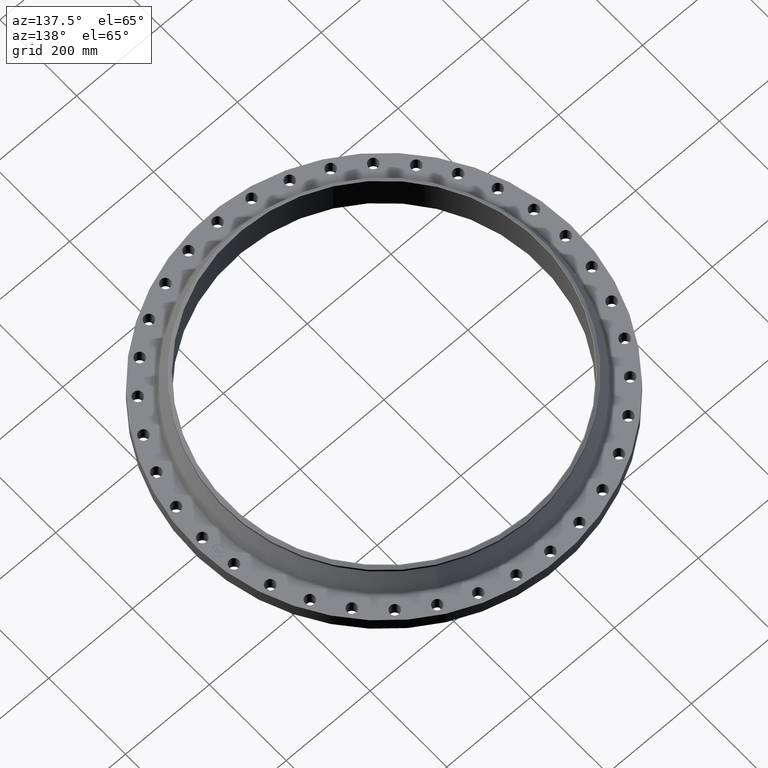
[diagram: clean part render]
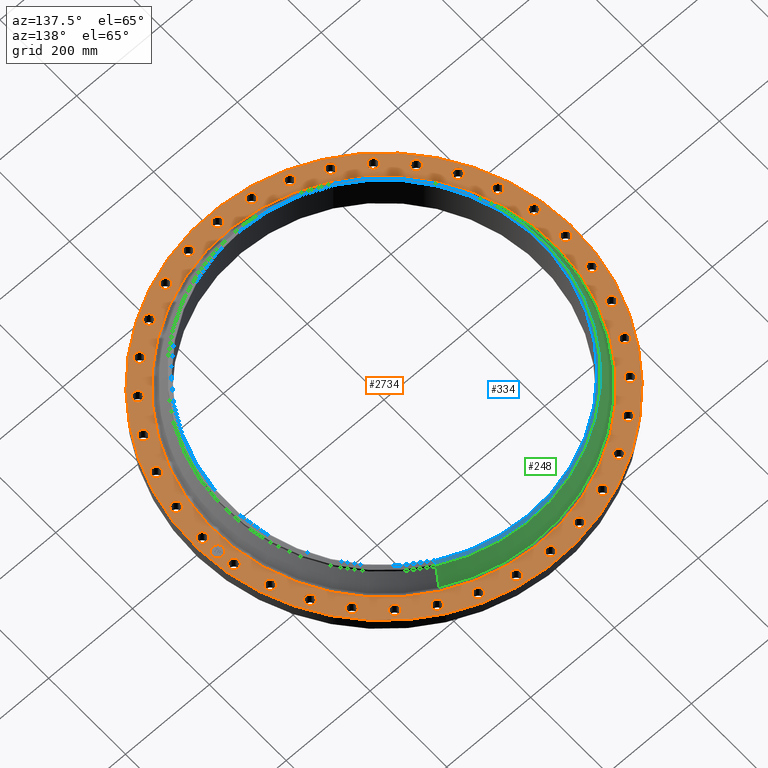
[diagram: same view with three faces highlighted in distinct colors, each labeled with its STEP entity id]
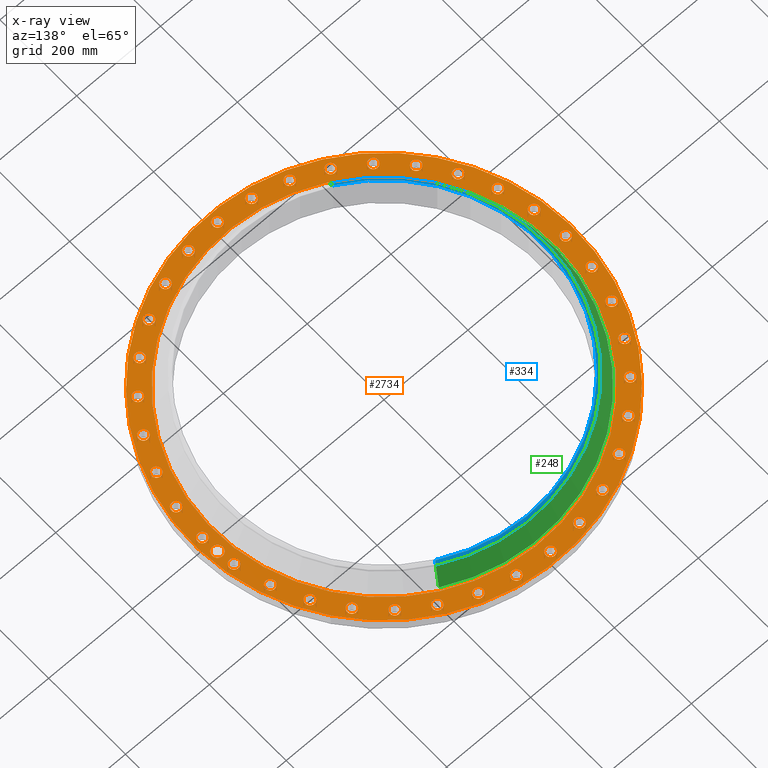
[diagram: x-ray of the same camera — body ghosted, the three highlighted faces saturated]
A machine part, auxiliary view with three faces highlighted in distinct colors.
The next image is the same camera in x-ray (body ghosted, the three faces saturated) — at least one of them is partly hidden behind the body in this view.
Their STEP definitions:

[orange] entity #2734 — the highlighted planar face has unit normal (0, 0, -1).
#65=AXIS2_PLACEMENT_3D('Circle Axis2P3D',#63,#64,$) ;
#82=AXIS2_PLACEMENT_3D('Circle Axis2P3D',#80,#81,$) ;
#115=AXIS2_PLACEMENT_3D('Circle Axis2P3D',#113,#114,$) ;
#139=AXIS2_PLACEMENT_3D('Circle Axis2P3D',#137,#138,$) ;
#156=AXIS2_PLACEMENT_3D('Circle Axis2P3D',#154,#155,$) ;
#191=AXIS2_PLACEMENT_3D('Circle Axis2P3D',#189,#190,$) ;
#1075=AXIS2_PLACEMENT_3D('Circle Axis2P3D',#1073,#1074,$) ;
#1087=AXIS2_PLACEMENT_3D('Circle Axis2P3D',#1085,#1086,$) ;
#1118=AXIS2_PLACEMENT_3D('Circle Axis2P3D',#1116,#1117,$) ;
#1130=AXIS2_PLACEMENT_3D('Circle Axis2P3D',#1128,#1129,$) ;
#1161=AXIS2_PLACEMENT_3D('Circle Axis2P3D',#1159,#1160,$) ;
#1173=AXIS2_PLACEMENT_3D('Circle Axis2P3D',#1171,#1172,$) ;
#1204=AXIS2_PLACEMENT_3D('Circle Axis2P3D',#1202,#1203,$) ;
#1216=AXIS2_PLACEMENT_3D('Circle Axis2P3D',#1214,#1215,$) ;
#1247=AXIS2_PLACEMENT_3D('Circle Axis2P3D',#1245,#1246,$) ;
#1259=AXIS2_PLACEMENT_3D('Circle Axis2P3D',#1257,#1258,$) ;
#1290=AXIS2_PLACEMENT_3D('Circle Axis2P3D',#1288,#1289,$) ;
#1302=AXIS2_PLACEMENT_3D('Circle Axis2P3D',#1300,#1301,$) ;
#1333=AXIS2_PLACEMENT_3D('Circle Axis2P3D',#1331,#1332,$) ;
#1345=AXIS2_PLACEMENT_3D('Circle Axis2P3D',#1343,#1344,$) ;
#1376=AXIS2_PLACEMENT_3D('Circle Axis2P3D',#1374,#1375,$) ;
#1388=AXIS2_PLACEMENT_3D('Circle Axis2P3D',#1386,#1387,$) ;
#1419=AXIS2_PLACEMENT_3D('Circle Axis2P3D',#1417,#1418,$) ;
#1431=AXIS2_PLACEMENT_3D('Circle Axis2P3D',#1429,#1430,$) ;
#1462=AXIS2_PLACEMENT_3D('Circle Axis2P3D',#1460,#1461,$) ;
#1474=AXIS2_PLACEMENT_3D('Circle Axis2P3D',#1472,#1473,$) ;
#1505=AXIS2_PLACEMENT_3D('Circle Axis2P3D',#1503,#1504,$) ;
#1517=AXIS2_PLACEMENT_3D('Circle Axis2P3D',#1515,#1516,$) ;
#1548=AXIS2_PLACEMENT_3D('Circle Axis2P3D',#1546,#1547,$) ;
#1560=AXIS2_PLACEMENT_3D('Circle Axis2P3D',#1558,#1559,$) ;
#1591=AXIS2_PLACEMENT_3D('Circle Axis2P3D',#1589,#1590,$) ;
#1603=AXIS2_PLACEMENT_3D('Circle Axis2P3D',#1601,#1602,$) ;
#1634=AXIS2_PLACEMENT_3D('Circle Axis2P3D',#1632,#1633,$) ;
#1646=AXIS2_PLACEMENT_3D('Circle Axis2P3D',#1644,#1645,$) ;
#1677=AXIS2_PLACEMENT_3D('Circle Axis2P3D',#1675,#1676,$) ;
#1689=AXIS2_PLACEMENT_3D('Circle Axis2P3D',#1687,#1688,$) ;
#1720=AXIS2_PLACEMENT_3D('Circle Axis2P3D',#1718,#1719,$) ;
#1732=AXIS2_PLACEMENT_3D('Circle Axis2P3D',#1730,#1731,$) ;
#1763=AXIS2_PLACEMENT_3D('Circle Axis2P3D',#1761,#1762,$) ;
#1775=AXIS2_PLACEMENT_3D('Circle Axis2P3D',#1773,#1774,$) ;
#1806=AXIS2_PLACEMENT_3D('Circle Axis2P3D',#1804,#1805,$) ;
#1818=AXIS2_PLACEMENT_3D('Circle Axis2P3D',#1816,#1817,$) ;
#1849=AXIS2_PLACEMENT_3D('Circle Axis2P3D',#1847,#1848,$) ;
#1861=AXIS2_PLACEMENT_3D('Circle Axis2P3D',#1859,#1860,$) ;
#1892=AXIS2_PLACEMENT_3D('Circle Axis2P3D',#1890,#1891,$) ;
#1904=AXIS2_PLACEMENT_3D('Circle Axis2P3D',#1902,#1903,$) ;
#1935=AXIS2_PLACEMENT_3D('Circle Axis2P3D',#1933,#1934,$) ;
#1947=AXIS2_PLACEMENT_3D('Circle Axis2P3D',#1945,#1946,$) ;
#1978=AXIS2_PLACEMENT_3D('Circle Axis2P3D',#1976,#1977,$) ;
#1990=AXIS2_PLACEMENT_3D('Circle Axis2P3D',#1988,#1989,$) ;
#2021=AXIS2_PLACEMENT_3D('Circle Axis2P3D',#2019,#2020,$) ;
#2033=AXIS2_PLACEMENT_3D('Circle Axis2P3D',#2031,#2032,$) ;
#2064=AXIS2_PLACEMENT_3D('Circle Axis2P3D',#2062,#2063,$) ;
#2076=AXIS2_PLACEMENT_3D('Circle Axis2P3D',#2074,#2075,$) ;
#2107=AXIS2_PLACEMENT_3D('Circle Axis2P3D',#2105,#2106,$) ;
#2119=AXIS2_PLACEMENT_3D('Circle Axis2P3D',#2117,#2118,$) ;
#2150=AXIS2_PLACEMENT_3D('Circle Axis2P3D',#2148,#2149,$) ;
#2162=AXIS2_PLACEMENT_3D('Circle Axis2P3D',#2160,#2161,$) ;
#2193=AXIS2_PLACEMENT_3D('Circle Axis2P3D',#2191,#2192,$) ;
#2205=AXIS2_PLACEMENT_3D('Circle Axis2P3D',#2203,#2204,$) ;
#2236=AXIS2_PLACEMENT_3D('Circle Axis2P3D',#2234,#2235,$) ;
#2248=AXIS2_PLACEMENT_3D('Circle Axis2P3D',#2246,#2247,$) ;
#2279=AXIS2_PLACEMENT_3D('Circle Axis2P3D',#2277,#2278,$) ;
#2291=AXIS2_PLACEMENT_3D('Circle Axis2P3D',#2289,#2290,$) ;
#2322=AXIS2_PLACEMENT_3D('Circle Axis2P3D',#2320,#2321,$) ;
#2334=AXIS2_PLACEMENT_3D('Circle Axis2P3D',#2332,#2333,$) ;
#2365=AXIS2_PLACEMENT_3D('Circle Axis2P3D',#2363,#2364,$) ;
#2377=AXIS2_PLACEMENT_3D('Circle Axis2P3D',#2375,#2376,$) ;
#2408=AXIS2_PLACEMENT_3D('Circle Axis2P3D',#2406,#2407,$) ;
#2420=AXIS2_PLACEMENT_3D('Circle Axis2P3D',#2418,#2419,$) ;
#2451=AXIS2_PLACEMENT_3D('Circle Axis2P3D',#2449,#2450,$) ;
#2463=AXIS2_PLACEMENT_3D('Circle Axis2P3D',#2461,#2462,$) ;
#2494=AXIS2_PLACEMENT_3D('Circle Axis2P3D',#2492,#2493,$) ;
#2506=AXIS2_PLACEMENT_3D('Circle Axis2P3D',#2504,#2505,$) ;
#2537=AXIS2_PLACEMENT_3D('Circle Axis2P3D',#2535,#2536,$) ;
#2549=AXIS2_PLACEMENT_3D('Circle Axis2P3D',#2547,#2548,$) ;
#2562=AXIS2_PLACEMENT_3D('Plane Axis2P3D',#2559,#2560,#2561) ;
#2718=AXIS2_PLACEMENT_3D('Circle Axis2P3D',#2716,#2717,$) ;
#2727=AXIS2_PLACEMENT_3D('Circle Axis2P3D',#2725,#2726,$) ;
#46=CARTESIAN_POINT('Vertex',(16.6788636728,0.210947236987,1.38000000001)) ;
#60=CARTESIAN_POINT('Vertex',(17.4511363273,-0.210947236987,1.38000000001)) ;
#63=CARTESIAN_POINT('Axis2P3D Location',(17.0650000001,0.,1.38000000001)) ;
#80=CARTESIAN_POINT('Axis2P3D Location',(17.0650000001,0.,1.38000000001)) ;
#110=CARTESIAN_POINT('Vertex',(-8.56973150258,-15.6867882939,1.38000000001)) ;
#113=CARTESIAN_POINT('Axis2P3D Location',(0.,0.,1.38000000001)) ;
#117=CARTESIAN_POINT('Vertex',(8.56973150258,15.6867882939,1.38000000001)) ;
#137=CARTESIAN_POINT('Axis2P3D Location',(0.,0.,1.38000000001)) ;
#154=CARTESIAN_POINT('Axis2P3D Location',(0.,0.,1.38000000001)) ;
#158=CARTESIAN_POINT('Vertex',(7.71508073723,14.1223605615,1.38000000001)) ;
#160=CARTESIAN_POINT('Vertex',(-7.71508073723,-14.1223605615,1.38000000001)) ;
#189=CARTESIAN_POINT('Axis2P3D Location',(0.,0.,1.38000000001)) ;
#1063=CARTESIAN_POINT('Vertex',(-16.4621048597,2.68851180788,1.38000000001)) ;
#1070=CARTESIAN_POINT('Vertex',(-17.1493837507,3.23810049591,1.38000000001)) ;
#1073=CARTESIAN_POINT('Axis2P3D Location',(-16.8057443052,2.9633061519,1.38000000001)) ;
#1085=CARTESIAN_POINT('Axis2P3D Location',(-16.8057443052,2.9633061519,1.38000000001)) ;
#1106=CARTESIAN_POINT('Vertex',(15.7451533207,-5.50628178192,1.38000000001)) ;
#1113=CARTESIAN_POINT('Vertex',(16.3265558269,-6.16686570983,1.38000000001)) ;
#1116=CARTESIAN_POINT('Axis2P3D Location',(16.0358545738,-5.83657374588,1.38000000001)) ;
#1128=CARTESIAN_POINT('Axis2P3D Location',(16.0358545738,-5.83657374588,1.38000000001)) ;
#1149=CARTESIAN_POINT('Vertex',(-15.7451533207,5.50628178192,1.38000000001)) ;
#1156=CARTESIAN_POINT('Vertex',(-16.3265558269,6.16686570983,1.38000000001)) ;
#1159=CARTESIAN_POINT('Axis2P3D Location',(-16.0358545738,5.83657374588,1.38000000001)) ;
#1171=CARTESIAN_POINT('Axis2P3D Location',(-16.0358545738,5.83657374588,1.38000000001)) ;
#1192=CARTESIAN_POINT('Vertex',(14.5497932654,-8.15674617033,1.38000000001)) ;
#1199=CARTESIAN_POINT('Vertex',(15.0076537659,-8.90825382974,1.38000000001)) ;
#1202=CARTESIAN_POINT('Axis2P3D Location',(14.7787235156,-8.53250000003,1.38000000001)) ;
#1214=CARTESIAN_POINT('Axis2P3D Location',(14.7787235156,-8.53250000003,1.38000000001)) ;
#1235=CARTESIAN_POINT('Vertex',(-14.5497932654,8.15674617033,1.38000000001)) ;
#1242=CARTESIAN_POINT('Vertex',(-15.0076537659,8.90825382974,1.38000000001)) ;
#1245=CARTESIAN_POINT('Axis2P3D Location',(-14.7787235156,8.53250000003,1.38000000001)) ;
#1257=CARTESIAN_POINT('Axis2P3D Location',(-14.7787235156,8.53250000003,1.38000000001)) ;
#1278=CARTESIAN_POINT('Vertex',(12.9123451043,-10.5593719539,1.38000000001)) ;
#1285=CARTESIAN_POINT('Vertex',(13.2327517394,-11.3789691648,1.38000000001)) ;
#1288=CARTESIAN_POINT('Axis2P3D Location',(13.0725484219,-10.9691705593,1.38000000001)) ;
#1300=CARTESIAN_POINT('Axis2P3D Location',(13.0725484219,-10.9691705593,1.38000000001)) ;
#1321=CARTESIAN_POINT('Vertex',(-12.9123451043,10.5593719539,1.38000000001)) ;
#1328=CARTESIAN_POINT('Vertex',(-13.2327517394,11.3789691648,1.38000000001)) ;
#1331=CARTESIAN_POINT('Axis2P3D Location',(-13.0725484219,10.9691705593,1.38000000001)) ;
#1343=CARTESIAN_POINT('Axis2P3D Location',(-13.0725484219,10.9691705593,1.38000000001)) ;
#1364=CARTESIAN_POINT('Vertex',(10.8825618712,-12.6411565639,1.38000000001)) ;
#1371=CARTESIAN_POINT('Vertex',(11.0557792475,-13.5039402799,1.38000000001)) ;
#1374=CARTESIAN_POINT('Axis2P3D Location',(10.9691705593,-13.0725484219,1.38000000001)) ;
#1386=CARTESIAN_POINT('Axis2P3D Location',(10.9691705593,-13.0725484219,1.38000000001)) ;
#1407=CARTESIAN_POINT('Vertex',(-10.8825618712,12.6411565639,1.38000000001)) ;
#1414=CARTESIAN_POINT('Vertex',(-11.0557792475,13.5039402799,1.38000000001)) ;
#1417=CARTESIAN_POINT('Axis2P3D Location',(-10.9691705593,13.0725484219,1.38000000001)) ;
#1429=CARTESIAN_POINT('Axis2P3D Location',(-10.9691705593,13.0725484219,1.38000000001)) ;
#1450=CARTESIAN_POINT('Vertex',(8.52211750251,-14.3388460284,1.38000000001)) ;
#1457=CARTESIAN_POINT('Vertex',(8.54288249756,-15.2186010028,1.38000000001)) ;
#1460=CARTESIAN_POINT('Axis2P3D Location',(8.53250000003,-14.7787235156,1.38000000001)) ;
#1472=CARTESIAN_POINT('Axis2P3D Location',(8.53250000003,-14.7787235156,1.38000000001)) ;
#1493=CARTESIAN_POINT('Vertex',(-8.52211750251,14.3388460284,1.38000000001)) ;
#1500=CARTESIAN_POINT('Vertex',(-8.54288249756,15.2186010028,1.38000000001)) ;
#1503=CARTESIAN_POINT('Axis2P3D Location',(-8.53250000003,14.7787235156,1.38000000001)) ;
#1515=CARTESIAN_POINT('Axis2P3D Location',(-8.53250000003,14.7787235156,1.38000000001)) ;
#1536=CARTESIAN_POINT('Vertex',(5.90273290586,-15.6008569122,1.38000000001)) ;
#1543=CARTESIAN_POINT('Vertex',(5.77041458589,-16.4708522353,1.38000000001)) ;
#1546=CARTESIAN_POINT('Axis2P3D Location',(5.83657374588,-16.0358545738,1.38000000001)) ;
#1558=CARTESIAN_POINT('Axis2P3D Location',(5.83657374588,-16.0358545738,1.38000000001)) ;
#1579=CARTESIAN_POINT('Vertex',(-5.90273290586,15.6008569122,1.38000000001)) ;
#1586=CARTESIAN_POINT('Vertex',(-5.77041458589,16.4708522353,1.38000000001)) ;
#1589=CARTESIAN_POINT('Axis2P3D Location',(-5.83657374588,16.0358545738,1.38000000001)) ;
#1601=CARTESIAN_POINT('Axis2P3D Location',(-5.83657374588,16.0358545738,1.38000000001)) ;
#1622=CARTESIAN_POINT('Vertex',(3.1039967568,-16.3888436532,1.38000000001)) ;
#1629=CARTESIAN_POINT('Vertex',(2.82261554699,-17.2226449573,1.38000000001)) ;
#1632=CARTESIAN_POINT('Axis2P3D Location',(2.9633061519,-16.8057443052,1.38000000001)) ;
#1644=CARTESIAN_POINT('Axis2P3D Location',(2.9633061519,-16.8057443052,1.38000000001)) ;
#1665=CARTESIAN_POINT('Vertex',(-3.1039967568,16.3888436532,1.38000000001)) ;
#1672=CARTESIAN_POINT('Vertex',(-2.82261554699,17.2226449573,1.38000000001)) ;
#1675=CARTESIAN_POINT('Axis2P3D Location',(-2.9633061519,16.8057443052,1.38000000001)) ;
#1687=CARTESIAN_POINT('Axis2P3D Location',(-2.9633061519,16.8057443052,1.38000000001)) ;
#1708=CARTESIAN_POINT('Vertex',(0.210947236987,-16.6788636728,1.38000000001)) ;
#1715=CARTESIAN_POINT('Vertex',(-0.210947236987,-17.4511363273,1.38000000001)) ;
#1718=CARTESIAN_POINT('Axis2P3D Location',(-1.19299999503E-015,-17.0650000001,1.38000000001)) ;
#1730=CARTESIAN_POINT('Axis2P3D Location',(-1.19299999503E-015,-17.0650000001,1.38000000001)) ;
#1751=CARTESIAN_POINT('Vertex',(-0.210947236987,16.6788636728,1.38000000001)) ;
#1758=CARTESIAN_POINT('Vertex',(0.210947236987,17.4511363273,1.38000000001)) ;
#1761=CARTESIAN_POINT('Axis2P3D Location',(-8.9685976772E-016,17.0650000001,1.38000000001)) ;
#1773=CARTESIAN_POINT('Axis2P3D Location',(-8.9685976772E-016,17.0650000001,1.38000000001)) ;
#1794=CARTESIAN_POINT('Vertex',(-2.68851180788,-16.4621048597,1.38000000001)) ;
#1801=CARTESIAN_POINT('Vertex',(-3.23810049591,-17.1493837507,1.38000000001)) ;
#1804=CARTESIAN_POINT('Axis2P3D Location',(-2.9633061519,-16.8057443052,1.38000000001)) ;
#1816=CARTESIAN_POINT('Axis2P3D Location',(-2.9633061519,-16.8057443052,1.38000000001)) ;
#1837=CARTESIAN_POINT('Vertex',(2.68851180788,16.4621048597,1.38000000001)) ;
#1844=CARTESIAN_POINT('Vertex',(3.23810049591,17.1493837507,1.38000000001)) ;
#1847=CARTESIAN_POINT('Axis2P3D Location',(2.9633061519,16.8057443052,1.38000000001)) ;
#1859=CARTESIAN_POINT('Axis2P3D Location',(2.9633061519,16.8057443052,1.38000000001)) ;
#1880=CARTESIAN_POINT('Vertex',(-5.50628178192,-15.7451533207,1.38000000001)) ;
#1887=CARTESIAN_POINT('Vertex',(-6.16686570983,-16.3265558269,1.38000000001)) ;
#1890=CARTESIAN_POINT('Axis2P3D Location',(-5.83657374588,-16.0358545738,1.38000000001)) ;
#1902=CARTESIAN_POINT('Axis2P3D Location',(-5.83657374588,-16.0358545738,1.38000000001)) ;
#1923=CARTESIAN_POINT('Vertex',(5.50628178192,15.7451533207,1.38000000001)) ;
#1930=CARTESIAN_POINT('Vertex',(6.16686570983,16.3265558269,1.38000000001)) ;
#1933=CARTESIAN_POINT('Axis2P3D Location',(5.83657374588,16.0358545738,1.38000000001)) ;
#1945=CARTESIAN_POINT('Axis2P3D Location',(5.83657374588,16.0358545738,1.38000000001)) ;
#1966=CARTESIAN_POINT('Vertex',(-8.15674617033,-14.5497932654,1.38000000001)) ;
#1973=CARTESIAN_POINT('Vertex',(-8.90825382974,-15.0076537659,1.38000000001)) ;
#1976=CARTESIAN_POINT('Axis2P3D Location',(-8.53250000003,-14.7787235156,1.38000000001)) ;
#1988=CARTESIAN_POINT('Axis2P3D Location',(-8.53250000003,-14.7787235156,1.38000000001)) ;
#2009=CARTESIAN_POINT('Vertex',(8.15674617033,14.5497932654,1.38000000001)) ;
#2016=CARTESIAN_POINT('Vertex',(8.90825382974,15.0076537659,1.38000000001)) ;
#2019=CARTESIAN_POINT('Axis2P3D Location',(8.53250000003,14.7787235156,1.38000000001)) ;
#2031=CARTESIAN_POINT('Axis2P3D Location',(8.53250000003,14.7787235156,1.38000000001)) ;
#2052=CARTESIAN_POINT('Vertex',(-10.5593719539,-12.9123451043,1.38000000001)) ;
#2059=CARTESIAN_POINT('Vertex',(-11.3789691648,-13.2327517394,1.38000000001)) ;
#2062=CARTESIAN_POINT('Axis2P3D Location',(-10.9691705593,-13.0725484219,1.38000000001)) ;
#2074=CARTESIAN_POINT('Axis2P3D Location',(-10.9691705593,-13.0725484219,1.38000000001)) ;
#2095=CARTESIAN_POINT('Vertex',(10.5593719539,12.9123451043,1.38000000001)) ;
#2102=CARTESIAN_POINT('Vertex',(11.3789691648,13.2327517394,1.38000000001)) ;
#2105=CARTESIAN_POINT('Axis2P3D Location',(10.9691705593,13.0725484219,1.38000000001)) ;
#2117=CARTESIAN_POINT('Axis2P3D Location',(10.9691705593,13.0725484219,1.38000000001)) ;
#2138=CARTESIAN_POINT('Vertex',(-12.6411565639,-10.8825618712,1.38000000001)) ;
#2145=CARTESIAN_POINT('Vertex',(-13.5039402799,-11.0557792475,1.38000000001)) ;
#2148=CARTESIAN_POINT('Axis2P3D Location',(-13.0725484219,-10.9691705593,1.38000000001)) ;
#2160=CARTESIAN_POINT('Axis2P3D Location',(-13.0725484219,-10.9691705593,1.38000000001)) ;
#2181=CARTESIAN_POINT('Vertex',(12.6411565639,10.8825618712,1.38000000001)) ;
#2188=CARTESIAN_POINT('Vertex',(13.5039402799,11.0557792475,1.38000000001)) ;
#2191=CARTESIAN_POINT('Axis2P3D Location',(13.0725484219,10.9691705593,1.38000000001)) ;
#2203=CARTESIAN_POINT('Axis2P3D Location',(13.0725484219,10.9691705593,1.38000000001)) ;
#2224=CARTESIAN_POINT('Vertex',(-14.3388460284,-8.52211750251,1.38000000001)) ;
#2231=CARTESIAN_POINT('Vertex',(-15.2186010028,-8.54288249756,1.38000000001)) ;
#2234=CARTESIAN_POINT('Axis2P3D Location',(-14.7787235156,-8.53250000003,1.38000000001)) ;
#2246=CARTESIAN_POINT('Axis2P3D Location',(-14.7787235156,-8.53250000003,1.38000000001)) ;
#2267=CARTESIAN_POINT('Vertex',(14.3388460284,8.52211750251,1.38000000001)) ;
#2274=CARTESIAN_POINT('Vertex',(15.2186010028,8.54288249756,1.38000000001)) ;
#2277=CARTESIAN_POINT('Axis2P3D Location',(14.7787235156,8.53250000003,1.38000000001)) ;
#2289=CARTESIAN_POINT('Axis2P3D Location',(14.7787235156,8.53250000003,1.38000000001)) ;
#2310=CARTESIAN_POINT('Vertex',(-15.6008569122,-5.90273290586,1.38000000001)) ;
#2317=CARTESIAN_POINT('Vertex',(-16.4708522353,-5.77041458589,1.38000000001)) ;
#2320=CARTESIAN_POINT('Axis2P3D Location',(-16.0358545738,-5.83657374588,1.38000000001)) ;
#2332=CARTESIAN_POINT('Axis2P3D Location',(-16.0358545738,-5.83657374588,1.38000000001)) ;
#2353=CARTESIAN_POINT('Vertex',(15.6008569122,5.90273290586,1.38000000001)) ;
#2360=CARTESIAN_POINT('Vertex',(16.4708522353,5.77041458589,1.38000000001)) ;
#2363=CARTESIAN_POINT('Axis2P3D Location',(16.0358545738,5.83657374588,1.38000000001)) ;
#2375=CARTESIAN_POINT('Axis2P3D Location',(16.0358545738,5.83657374588,1.38000000001)) ;
#2396=CARTESIAN_POINT('Vertex',(-16.3888436532,-3.1039967568,1.38000000001)) ;
#2403=CARTESIAN_POINT('Vertex',(-17.2226449573,-2.82261554699,1.38000000001)) ;
#2406=CARTESIAN_POINT('Axis2P3D Location',(-16.8057443052,-2.9633061519,1.38000000001)) ;
#2418=CARTESIAN_POINT('Axis2P3D Location',(-16.8057443052,-2.9633061519,1.38000000001)) ;
#2439=CARTESIAN_POINT('Vertex',(16.3888436532,3.1039967568,1.38000000001)) ;
#2446=CARTESIAN_POINT('Vertex',(17.2226449573,2.82261554699,1.38000000001)) ;
#2449=CARTESIAN_POINT('Axis2P3D Location',(16.8057443052,2.9633061519,1.38000000001)) ;
#2461=CARTESIAN_POINT('Axis2P3D Location',(16.8057443052,2.9633061519,1.38000000001)) ;
#2482=CARTESIAN_POINT('Vertex',(-16.6788636728,-0.210947236987,1.38000000001)) ;
#2489=CARTESIAN_POINT('Vertex',(-17.4511363273,0.210947236987,1.38000000001)) ;
#2492=CARTESIAN_POINT('Axis2P3D Location',(-17.0650000001,-2.08985976275E-015,1.38000000001)) ;
#2504=CARTESIAN_POINT('Axis2P3D Location',(-17.0650000001,-2.08985976275E-015,1.38000000001)) ;
#2525=CARTESIAN_POINT('Vertex',(16.4621048597,-2.68851180788,1.38000000001)) ;
#2532=CARTESIAN_POINT('Vertex',(17.1493837507,-3.23810049591,1.38000000001)) ;
#2535=CARTESIAN_POINT('Axis2P3D Location',(16.8057443052,-2.9633061519,1.38000000001)) ;
#2547=CARTESIAN_POINT('Axis2P3D Location',(16.8057443052,-2.9633061519,1.38000000001)) ;
#2559=CARTESIAN_POINT('Axis2P3D Location',(0.,17.8750000001,1.38000000001)) ;
#2716=CARTESIAN_POINT('Axis2P3D Location',(17.000062523,1.48731274999,1.38000000001)) ;
#2720=CARTESIAN_POINT('Vertex',(16.9564847515,1.9854089574,1.38000000001)) ;
#2722=CARTESIAN_POINT('Vertex',(17.0436402945,0.989216542589,1.38000000001)) ;
#2725=CARTESIAN_POINT('Axis2P3D Location',(17.000062523,1.48731274999,1.38000000001)) ;
#64=DIRECTION('Axis2P3D Direction',(0.,-0.,-0.0393700787402)) ;
#81=DIRECTION('Axis2P3D Direction',(0.,-0.,-0.0393700787402)) ;
#114=DIRECTION('Axis2P3D Direction',(0.,0.,-0.0393700787402)) ;
#138=DIRECTION('Axis2P3D Direction',(0.,0.,-0.0393700787402)) ;
#155=DIRECTION('Axis2P3D Direction',(0.,0.,-0.0393700787402)) ;
#190=DIRECTION('Axis2P3D Direction',(0.,0.,-0.0393700787402)) ;
#1074=DIRECTION('Axis2P3D Direction',(0.,0.,-0.0393700787402)) ;
#1086=DIRECTION('Axis2P3D Direction',(0.,0.,-0.0393700787402)) ;
#1117=DIRECTION('Axis2P3D Direction',(0.,-0.,-0.0393700787402)) ;
#1129=DIRECTION('Axis2P3D Direction',(0.,-0.,-0.0393700787402)) ;
#1160=DIRECTION('Axis2P3D Direction',(0.,0.,-0.0393700787402)) ;
#1172=DIRECTION('Axis2P3D Direction',(0.,0.,-0.0393700787402)) ;
#1203=DIRECTION('Axis2P3D Direction',(0.,-0.,-0.0393700787402)) ;
#1215=DIRECTION('Axis2P3D Direction',(0.,-0.,-0.0393700787402)) ;
#1246=DIRECTION('Axis2P3D Direction',(0.,0.,-0.0393700787402)) ;
#1258=DIRECTION('Axis2P3D Direction',(0.,0.,-0.0393700787402)) ;
#1289=DIRECTION('Axis2P3D Direction',(0.,-0.,-0.0393700787402)) ;
#1301=DIRECTION('Axis2P3D Direction',(0.,-0.,-0.0393700787402)) ;
#1332=DIRECTION('Axis2P3D Direction',(0.,0.,-0.0393700787402)) ;
#1344=DIRECTION('Axis2P3D Direction',(0.,0.,-0.0393700787402)) ;
#1375=DIRECTION('Axis2P3D Direction',(0.,-0.,-0.0393700787402)) ;
#1387=DIRECTION('Axis2P3D Direction',(0.,-0.,-0.0393700787402)) ;
#1418=DIRECTION('Axis2P3D Direction',(0.,0.,-0.0393700787402)) ;
#1430=DIRECTION('Axis2P3D Direction',(0.,0.,-0.0393700787402)) ;
#1461=DIRECTION('Axis2P3D Direction',(0.,-0.,-0.0393700787402)) ;
#1473=DIRECTION('Axis2P3D Direction',(0.,-0.,-0.0393700787402)) ;
#1504=DIRECTION('Axis2P3D Direction',(0.,0.,-0.0393700787402)) ;
#1516=DIRECTION('Axis2P3D Direction',(0.,0.,-0.0393700787402)) ;
#1547=DIRECTION('Axis2P3D Direction',(0.,-0.,-0.0393700787402)) ;
#1559=DIRECTION('Axis2P3D Direction',(0.,-0.,-0.0393700787402)) ;
#1590=DIRECTION('Axis2P3D Direction',(0.,0.,-0.0393700787402)) ;
#1602=DIRECTION('Axis2P3D Direction',(0.,0.,-0.0393700787402)) ;
#1633=DIRECTION('Axis2P3D Direction',(0.,-0.,-0.0393700787402)) ;
#1645=DIRECTION('Axis2P3D Direction',(0.,-0.,-0.0393700787402)) ;
#1676=DIRECTION('Axis2P3D Direction',(0.,0.,-0.0393700787402)) ;
#1688=DIRECTION('Axis2P3D Direction',(0.,0.,-0.0393700787402)) ;
#1719=DIRECTION('Axis2P3D Direction',(0.,-0.,-0.0393700787402)) ;
#1731=DIRECTION('Axis2P3D Direction',(0.,-0.,-0.0393700787402)) ;
#1762=DIRECTION('Axis2P3D Direction',(0.,0.,-0.0393700787402)) ;
#1774=DIRECTION('Axis2P3D Direction',(0.,0.,-0.0393700787402)) ;
#1805=DIRECTION('Axis2P3D Direction',(-0.,0.,-0.0393700787402)) ;
#1817=DIRECTION('Axis2P3D Direction',(-0.,0.,-0.0393700787402)) ;
#1848=DIRECTION('Axis2P3D Direction',(0.,0.,-0.0393700787402)) ;
#1860=DIRECTION('Axis2P3D Direction',(0.,0.,-0.0393700787402)) ;
#1891=DIRECTION('Axis2P3D Direction',(-0.,0.,-0.0393700787402)) ;
#1903=DIRECTION('Axis2P3D Direction',(-0.,0.,-0.0393700787402)) ;
#1934=DIRECTION('Axis2P3D Direction',(0.,0.,-0.0393700787402)) ;
#1946=DIRECTION('Axis2P3D Direction',(0.,0.,-0.0393700787402)) ;
#1977=DIRECTION('Axis2P3D Direction',(-0.,0.,-0.0393700787402)) ;
#1989=DIRECTION('Axis2P3D Direction',(-0.,0.,-0.0393700787402)) ;
#2020=DIRECTION('Axis2P3D Direction',(0.,0.,-0.0393700787402)) ;
#2032=DIRECTION('Axis2P3D Direction',(0.,0.,-0.0393700787402)) ;
#2063=DIRECTION('Axis2P3D Direction',(-0.,0.,-0.0393700787402)) ;
#2075=DIRECTION('Axis2P3D Direction',(-0.,0.,-0.0393700787402)) ;
#2106=DIRECTION('Axis2P3D Direction',(0.,0.,-0.0393700787402)) ;
#2118=DIRECTION('Axis2P3D Direction',(0.,0.,-0.0393700787402)) ;
#2149=DIRECTION('Axis2P3D Direction',(-0.,0.,-0.0393700787402)) ;
#2161=DIRECTION('Axis2P3D Direction',(-0.,0.,-0.0393700787402)) ;
#2192=DIRECTION('Axis2P3D Direction',(0.,0.,-0.0393700787402)) ;
#2204=DIRECTION('Axis2P3D Direction',(0.,0.,-0.0393700787402)) ;
#2235=DIRECTION('Axis2P3D Direction',(-0.,0.,-0.0393700787402)) ;
#2247=DIRECTION('Axis2P3D Direction',(-0.,0.,-0.0393700787402)) ;
#2278=DIRECTION('Axis2P3D Direction',(0.,0.,-0.0393700787402)) ;
#2290=DIRECTION('Axis2P3D Direction',(0.,0.,-0.0393700787402)) ;
#2321=DIRECTION('Axis2P3D Direction',(-0.,0.,-0.0393700787402)) ;
#2333=DIRECTION('Axis2P3D Direction',(-0.,0.,-0.0393700787402)) ;
#2364=DIRECTION('Axis2P3D Direction',(0.,0.,-0.0393700787402)) ;
#2376=DIRECTION('Axis2P3D Direction',(0.,0.,-0.0393700787402)) ;
#2407=DIRECTION('Axis2P3D Direction',(-0.,0.,-0.0393700787402)) ;
#2419=DIRECTION('Axis2P3D Direction',(-0.,0.,-0.0393700787402)) ;
#2450=DIRECTION('Axis2P3D Direction',(0.,0.,-0.0393700787402)) ;
#2462=DIRECTION('Axis2P3D Direction',(0.,0.,-0.0393700787402)) ;
#2493=DIRECTION('Axis2P3D Direction',(-0.,0.,-0.0393700787402)) ;
#2505=DIRECTION('Axis2P3D Direction',(-0.,0.,-0.0393700787402)) ;
#2536=DIRECTION('Axis2P3D Direction',(0.,-0.,-0.0393700787402)) ;
#2548=DIRECTION('Axis2P3D Direction',(0.,-0.,-0.0393700787402)) ;
#2560=DIRECTION('Axis2P3D Direction',(0.,0.,-0.0393700787402)) ;
#2561=DIRECTION('Axis2P3D XDirection',(0.0393700787402,0.,0.)) ;
#2717=DIRECTION('Axis2P3D Direction',(0.,0.,-0.0393700787402)) ;
#2726=DIRECTION('Axis2P3D Direction',(0.,0.,-0.0393700787402)) ;
#2565=ORIENTED_EDGE('',*,*,#141,.F.) ;
#2566=ORIENTED_EDGE('',*,*,#119,.F.) ;
#2569=ORIENTED_EDGE('',*,*,#67,.T.) ;
#2570=ORIENTED_EDGE('',*,*,#84,.T.) ;
#2573=ORIENTED_EDGE('',*,*,#193,.T.) ;
#2574=ORIENTED_EDGE('',*,*,#162,.T.) ;
#2577=ORIENTED_EDGE('',*,*,#2551,.T.) ;
#2578=ORIENTED_EDGE('',*,*,#2539,.T.) ;
#2581=ORIENTED_EDGE('',*,*,#1132,.T.) ;
#2582=ORIENTED_EDGE('',*,*,#1120,.T.) ;
#2585=ORIENTED_EDGE('',*,*,#1218,.T.) ;
#2586=ORIENTED_EDGE('',*,*,#1206,.T.) ;
#2589=ORIENTED_EDGE('',*,*,#1304,.T.) ;
#2590=ORIENTED_EDGE('',*,*,#1292,.T.) ;
#2593=ORIENTED_EDGE('',*,*,#1390,.T.) ;
#2594=ORIENTED_EDGE('',*,*,#1378,.T.) ;
#2597=ORIENTED_EDGE('',*,*,#1476,.T.) ;
#2598=ORIENTED_EDGE('',*,*,#1464,.T.) ;
#2601=ORIENTED_EDGE('',*,*,#1562,.T.) ;
#2602=ORIENTED_EDGE('',*,*,#1550,.T.) ;
#2605=ORIENTED_EDGE('',*,*,#1648,.T.) ;
#2606=ORIENTED_EDGE('',*,*,#1636,.T.) ;
#2609=ORIENTED_EDGE('',*,*,#1734,.T.) ;
#2610=ORIENTED_EDGE('',*,*,#1722,.T.) ;
#2613=ORIENTED_EDGE('',*,*,#1820,.T.) ;
#2614=ORIENTED_EDGE('',*,*,#1808,.T.) ;
#2617=ORIENTED_EDGE('',*,*,#1906,.T.) ;
#2618=ORIENTED_EDGE('',*,*,#1894,.T.) ;
#2621=ORIENTED_EDGE('',*,*,#1992,.T.) ;
#2622=ORIENTED_EDGE('',*,*,#1980,.T.) ;
#2625=ORIENTED_EDGE('',*,*,#2078,.T.) ;
#2626=ORIENTED_EDGE('',*,*,#2066,.T.) ;
#2629=ORIENTED_EDGE('',*,*,#2164,.T.) ;
#2630=ORIENTED_EDGE('',*,*,#2152,.T.) ;
#2633=ORIENTED_EDGE('',*,*,#2250,.T.) ;
#2634=ORIENTED_EDGE('',*,*,#2238,.T.) ;
#2637=ORIENTED_EDGE('',*,*,#2336,.T.) ;
#2638=ORIENTED_EDGE('',*,*,#2324,.T.) ;
#2641=ORIENTED_EDGE('',*,*,#2422,.T.) ;
#2642=ORIENTED_EDGE('',*,*,#2410,.T.) ;
#2645=ORIENTED_EDGE('',*,*,#2508,.T.) ;
#2646=ORIENTED_EDGE('',*,*,#2496,.T.) ;
#2649=ORIENTED_EDGE('',*,*,#1089,.T.) ;
#2650=ORIENTED_EDGE('',*,*,#1077,.T.) ;
#2653=ORIENTED_EDGE('',*,*,#1175,.T.) ;
#2654=ORIENTED_EDGE('',*,*,#1163,.T.) ;
#2657=ORIENTED_EDGE('',*,*,#1261,.T.) ;
#2658=ORIENTED_EDGE('',*,*,#1249,.T.) ;
#2661=ORIENTED_EDGE('',*,*,#1347,.T.) ;
#2662=ORIENTED_EDGE('',*,*,#1335,.T.) ;
#2665=ORIENTED_EDGE('',*,*,#1433,.T.) ;
#2666=ORIENTED_EDGE('',*,*,#1421,.T.) ;
#2669=ORIENTED_EDGE('',*,*,#1519,.T.) ;
#2670=ORIENTED_EDGE('',*,*,#1507,.T.) ;
#2673=ORIENTED_EDGE('',*,*,#1605,.T.) ;
#2674=ORIENTED_EDGE('',*,*,#1593,.T.) ;
#2677=ORIENTED_EDGE('',*,*,#1691,.T.) ;
#2678=ORIENTED_EDGE('',*,*,#1679,.T.) ;
#2681=ORIENTED_EDGE('',*,*,#1777,.T.) ;
#2682=ORIENTED_EDGE('',*,*,#1765,.T.) ;
#2685=ORIENTED_EDGE('',*,*,#1863,.T.) ;
#2686=ORIENTED_EDGE('',*,*,#1851,.T.) ;
#2689=ORIENTED_EDGE('',*,*,#1949,.T.) ;
#2690=ORIENTED_EDGE('',*,*,#1937,.T.) ;
#2693=ORIENTED_EDGE('',*,*,#2035,.T.) ;
#2694=ORIENTED_EDGE('',*,*,#2023,.T.) ;
#2697=ORIENTED_EDGE('',*,*,#2121,.T.) ;
#2698=ORIENTED_EDGE('',*,*,#2109,.T.) ;
#2701=ORIENTED_EDGE('',*,*,#2207,.T.) ;
#2702=ORIENTED_EDGE('',*,*,#2195,.T.) ;
#2705=ORIENTED_EDGE('',*,*,#2293,.T.) ;
#2706=ORIENTED_EDGE('',*,*,#2281,.T.) ;
#2709=ORIENTED_EDGE('',*,*,#2379,.T.) ;
#2710=ORIENTED_EDGE('',*,*,#2367,.T.) ;
#2713=ORIENTED_EDGE('',*,*,#2465,.T.) ;
#2714=ORIENTED_EDGE('',*,*,#2453,.T.) ;
#2731=ORIENTED_EDGE('',*,*,#2724,.T.) ;
#2732=ORIENTED_EDGE('',*,*,#2729,.T.) ;
#2571=FACE_BOUND('',#2568,.T.) ;
#2575=FACE_BOUND('',#2572,.T.) ;
#2579=FACE_BOUND('',#2576,.T.) ;
#2583=FACE_BOUND('',#2580,.T.) ;
#2587=FACE_BOUND('',#2584,.T.) ;
#2591=FACE_BOUND('',#2588,.T.) ;
#2595=FACE_BOUND('',#2592,.T.) ;
#2599=FACE_BOUND('',#2596,.T.) ;
#2603=FACE_BOUND('',#2600,.T.) ;
#2607=FACE_BOUND('',#2604,.T.) ;
#2611=FACE_BOUND('',#2608,.T.) ;
#2615=FACE_BOUND('',#2612,.T.) ;
#2619=FACE_BOUND('',#2616,.T.) ;
#2623=FACE_BOUND('',#2620,.T.) ;
#2627=FACE_BOUND('',#2624,.T.) ;
#2631=FACE_BOUND('',#2628,.T.) ;
#2635=FACE_BOUND('',#2632,.T.) ;
#2639=FACE_BOUND('',#2636,.T.) ;
#2643=FACE_BOUND('',#2640,.T.) ;
#2647=FACE_BOUND('',#2644,.T.) ;
#2651=FACE_BOUND('',#2648,.T.) ;
#2655=FACE_BOUND('',#2652,.T.) ;
#2659=FACE_BOUND('',#2656,.T.) ;
#2663=FACE_BOUND('',#2660,.T.) ;
#2667=FACE_BOUND('',#2664,.T.) ;
#2671=FACE_BOUND('',#2668,.T.) ;
#2675=FACE_BOUND('',#2672,.T.) ;
#2679=FACE_BOUND('',#2676,.T.) ;
#2683=FACE_BOUND('',#2680,.T.) ;
#2687=FACE_BOUND('',#2684,.T.) ;
#2691=FACE_BOUND('',#2688,.T.) ;
#2695=FACE_BOUND('',#2692,.T.) ;
#2699=FACE_BOUND('',#2696,.T.) ;
#2703=FACE_BOUND('',#2700,.T.) ;
#2707=FACE_BOUND('',#2704,.T.) ;
#2711=FACE_BOUND('',#2708,.T.) ;
#2715=FACE_BOUND('',#2712,.T.) ;
#2733=FACE_BOUND('',#2730,.T.) ;
#2734=ADVANCED_FACE('PartBody',(#2567,#2571,#2575,#2579,#2583,#2587,#2591,#2595,#2599,#2603,#2607,#2611,#2615,#2619,#2623,#2627,#2631,#2635,#2639,#2643,#2647,#2651,#2655,#2659,#2663,#2667,#2671,#2675,#2679,#2683,#2687,#2691,#2695,#2699,#2703,#2707,#2711,#2715,#2733),#2563,.F.) ;
#66=CIRCLE('generated circle',#65,0.440000000002) ;
#83=CIRCLE('generated circle',#82,0.440000000002) ;
#116=CIRCLE('generated circle',#115,17.8750000001) ;
#140=CIRCLE('generated circle',#139,17.8750000001) ;
#157=CIRCLE('generated circle',#156,16.0923440993) ;
#192=CIRCLE('generated circle',#191,16.0923440993) ;
#1076=CIRCLE('generated circle',#1075,0.440000000002) ;
#1088=CIRCLE('generated circle',#1087,0.440000000002) ;
#1119=CIRCLE('generated circle',#1118,0.440000000002) ;
#1131=CIRCLE('generated circle',#1130,0.440000000002) ;
#1162=CIRCLE('generated circle',#1161,0.440000000002) ;
#1174=CIRCLE('generated circle',#1173,0.440000000002) ;
#1205=CIRCLE('generated circle',#1204,0.440000000002) ;
#1217=CIRCLE('generated circle',#1216,0.440000000002) ;
#1248=CIRCLE('generated circle',#1247,0.440000000002) ;
#1260=CIRCLE('generated circle',#1259,0.440000000002) ;
#1291=CIRCLE('generated circle',#1290,0.440000000002) ;
#1303=CIRCLE('generated circle',#1302,0.440000000002) ;
#1334=CIRCLE('generated circle',#1333,0.440000000002) ;
#1346=CIRCLE('generated circle',#1345,0.440000000002) ;
#1377=CIRCLE('generated circle',#1376,0.440000000002) ;
#1389=CIRCLE('generated circle',#1388,0.440000000002) ;
#1420=CIRCLE('generated circle',#1419,0.440000000002) ;
#1432=CIRCLE('generated circle',#1431,0.440000000002) ;
#1463=CIRCLE('generated circle',#1462,0.440000000002) ;
#1475=CIRCLE('generated circle',#1474,0.440000000002) ;
#1506=CIRCLE('generated circle',#1505,0.440000000002) ;
#1518=CIRCLE('generated circle',#1517,0.440000000002) ;
#1549=CIRCLE('generated circle',#1548,0.440000000002) ;
#1561=CIRCLE('generated circle',#1560,0.440000000002) ;
#1592=CIRCLE('generated circle',#1591,0.440000000002) ;
#1604=CIRCLE('generated circle',#1603,0.440000000002) ;
#1635=CIRCLE('generated circle',#1634,0.440000000002) ;
#1647=CIRCLE('generated circle',#1646,0.440000000002) ;
#1678=CIRCLE('generated circle',#1677,0.440000000002) ;
#1690=CIRCLE('generated circle',#1689,0.440000000002) ;
#1721=CIRCLE('generated circle',#1720,0.440000000002) ;
#1733=CIRCLE('generated circle',#1732,0.440000000002) ;
#1764=CIRCLE('generated circle',#1763,0.440000000002) ;
#1776=CIRCLE('generated circle',#1775,0.440000000002) ;
#1807=CIRCLE('generated circle',#1806,0.440000000002) ;
#1819=CIRCLE('generated circle',#1818,0.440000000002) ;
#1850=CIRCLE('generated circle',#1849,0.440000000002) ;
#1862=CIRCLE('generated circle',#1861,0.440000000002) ;
#1893=CIRCLE('generated circle',#1892,0.440000000002) ;
#1905=CIRCLE('generated circle',#1904,0.440000000002) ;
#1936=CIRCLE('generated circle',#1935,0.440000000002) ;
#1948=CIRCLE('generated circle',#1947,0.440000000002) ;
#1979=CIRCLE('generated circle',#1978,0.440000000002) ;
#1991=CIRCLE('generated circle',#1990,0.440000000002) ;
#2022=CIRCLE('generated circle',#2021,0.440000000002) ;
#2034=CIRCLE('generated circle',#2033,0.440000000002) ;
#2065=CIRCLE('generated circle',#2064,0.440000000002) ;
#2077=CIRCLE('generated circle',#2076,0.440000000002) ;
#2108=CIRCLE('generated circle',#2107,0.440000000002) ;
#2120=CIRCLE('generated circle',#2119,0.440000000002) ;
#2151=CIRCLE('generated circle',#2150,0.440000000002) ;
#2163=CIRCLE('generated circle',#2162,0.440000000002) ;
#2194=CIRCLE('generated circle',#2193,0.440000000002) ;
#2206=CIRCLE('generated circle',#2205,0.440000000002) ;
#2237=CIRCLE('generated circle',#2236,0.440000000002) ;
#2249=CIRCLE('generated circle',#2248,0.440000000002) ;
#2280=CIRCLE('generated circle',#2279,0.440000000002) ;
#2292=CIRCLE('generated circle',#2291,0.440000000002) ;
#2323=CIRCLE('generated circle',#2322,0.440000000002) ;
#2335=CIRCLE('generated circle',#2334,0.440000000002) ;
#2366=CIRCLE('generated circle',#2365,0.440000000002) ;
#2378=CIRCLE('generated circle',#2377,0.440000000002) ;
#2409=CIRCLE('generated circle',#2408,0.440000000002) ;
#2421=CIRCLE('generated circle',#2420,0.440000000002) ;
#2452=CIRCLE('generated circle',#2451,0.440000000002) ;
#2464=CIRCLE('generated circle',#2463,0.440000000002) ;
#2495=CIRCLE('generated circle',#2494,0.440000000002) ;
#2507=CIRCLE('generated circle',#2506,0.440000000002) ;
#2538=CIRCLE('generated circle',#2537,0.440000000002) ;
#2550=CIRCLE('generated circle',#2549,0.440000000002) ;
#2719=CIRCLE('generated circle',#2718,0.499998853999) ;
#2728=CIRCLE('generated circle',#2727,0.499998853999) ;
#67=EDGE_CURVE('',#47,#61,#66,.T.) ;
#84=EDGE_CURVE('',#61,#47,#83,.T.) ;
#119=EDGE_CURVE('',#111,#118,#116,.T.) ;
#141=EDGE_CURVE('',#118,#111,#140,.T.) ;
#162=EDGE_CURVE('',#159,#161,#157,.T.) ;
#193=EDGE_CURVE('',#161,#159,#192,.T.) ;
#1077=EDGE_CURVE('',#1064,#1071,#1076,.T.) ;
#1089=EDGE_CURVE('',#1071,#1064,#1088,.T.) ;
#1120=EDGE_CURVE('',#1107,#1114,#1119,.T.) ;
#1132=EDGE_CURVE('',#1114,#1107,#1131,.T.) ;
#1163=EDGE_CURVE('',#1150,#1157,#1162,.T.) ;
#1175=EDGE_CURVE('',#1157,#1150,#1174,.T.) ;
#1206=EDGE_CURVE('',#1193,#1200,#1205,.T.) ;
#1218=EDGE_CURVE('',#1200,#1193,#1217,.T.) ;
#1249=EDGE_CURVE('',#1236,#1243,#1248,.T.) ;
#1261=EDGE_CURVE('',#1243,#1236,#1260,.T.) ;
#1292=EDGE_CURVE('',#1279,#1286,#1291,.T.) ;
#1304=EDGE_CURVE('',#1286,#1279,#1303,.T.) ;
#1335=EDGE_CURVE('',#1322,#1329,#1334,.T.) ;
#1347=EDGE_CURVE('',#1329,#1322,#1346,.T.) ;
#1378=EDGE_CURVE('',#1365,#1372,#1377,.T.) ;
#1390=EDGE_CURVE('',#1372,#1365,#1389,.T.) ;
#1421=EDGE_CURVE('',#1408,#1415,#1420,.T.) ;
#1433=EDGE_CURVE('',#1415,#1408,#1432,.T.) ;
#1464=EDGE_CURVE('',#1451,#1458,#1463,.T.) ;
#1476=EDGE_CURVE('',#1458,#1451,#1475,.T.) ;
#1507=EDGE_CURVE('',#1494,#1501,#1506,.T.) ;
#1519=EDGE_CURVE('',#1501,#1494,#1518,.T.) ;
#1550=EDGE_CURVE('',#1537,#1544,#1549,.T.) ;
#1562=EDGE_CURVE('',#1544,#1537,#1561,.T.) ;
#1593=EDGE_CURVE('',#1580,#1587,#1592,.T.) ;
#1605=EDGE_CURVE('',#1587,#1580,#1604,.T.) ;
#1636=EDGE_CURVE('',#1623,#1630,#1635,.T.) ;
#1648=EDGE_CURVE('',#1630,#1623,#1647,.T.) ;
#1679=EDGE_CURVE('',#1666,#1673,#1678,.T.) ;
#1691=EDGE_CURVE('',#1673,#1666,#1690,.T.) ;
#1722=EDGE_CURVE('',#1709,#1716,#1721,.T.) ;
#1734=EDGE_CURVE('',#1716,#1709,#1733,.T.) ;
#1765=EDGE_CURVE('',#1752,#1759,#1764,.T.) ;
#1777=EDGE_CURVE('',#1759,#1752,#1776,.T.) ;
#1808=EDGE_CURVE('',#1795,#1802,#1807,.T.) ;
#1820=EDGE_CURVE('',#1802,#1795,#1819,.T.) ;
#1851=EDGE_CURVE('',#1838,#1845,#1850,.T.) ;
#1863=EDGE_CURVE('',#1845,#1838,#1862,.T.) ;
#1894=EDGE_CURVE('',#1881,#1888,#1893,.T.) ;
#1906=EDGE_CURVE('',#1888,#1881,#1905,.T.) ;
#1937=EDGE_CURVE('',#1924,#1931,#1936,.T.) ;
#1949=EDGE_CURVE('',#1931,#1924,#1948,.T.) ;
#1980=EDGE_CURVE('',#1967,#1974,#1979,.T.) ;
#1992=EDGE_CURVE('',#1974,#1967,#1991,.T.) ;
#2023=EDGE_CURVE('',#2010,#2017,#2022,.T.) ;
#2035=EDGE_CURVE('',#2017,#2010,#2034,.T.) ;
#2066=EDGE_CURVE('',#2053,#2060,#2065,.T.) ;
#2078=EDGE_CURVE('',#2060,#2053,#2077,.T.) ;
#2109=EDGE_CURVE('',#2096,#2103,#2108,.T.) ;
#2121=EDGE_CURVE('',#2103,#2096,#2120,.T.) ;
#2152=EDGE_CURVE('',#2139,#2146,#2151,.T.) ;
#2164=EDGE_CURVE('',#2146,#2139,#2163,.T.) ;
#2195=EDGE_CURVE('',#2182,#2189,#2194,.T.) ;
#2207=EDGE_CURVE('',#2189,#2182,#2206,.T.) ;
#2238=EDGE_CURVE('',#2225,#2232,#2237,.T.) ;
#2250=EDGE_CURVE('',#2232,#2225,#2249,.T.) ;
#2281=EDGE_CURVE('',#2268,#2275,#2280,.T.) ;
#2293=EDGE_CURVE('',#2275,#2268,#2292,.T.) ;
#2324=EDGE_CURVE('',#2311,#2318,#2323,.T.) ;
#2336=EDGE_CURVE('',#2318,#2311,#2335,.T.) ;
#2367=EDGE_CURVE('',#2354,#2361,#2366,.T.) ;
#2379=EDGE_CURVE('',#2361,#2354,#2378,.T.) ;
#2410=EDGE_CURVE('',#2397,#2404,#2409,.T.) ;
#2422=EDGE_CURVE('',#2404,#2397,#2421,.T.) ;
#2453=EDGE_CURVE('',#2440,#2447,#2452,.T.) ;
#2465=EDGE_CURVE('',#2447,#2440,#2464,.T.) ;
#2496=EDGE_CURVE('',#2483,#2490,#2495,.T.) ;
#2508=EDGE_CURVE('',#2490,#2483,#2507,.T.) ;
#2539=EDGE_CURVE('',#2526,#2533,#2538,.T.) ;
#2551=EDGE_CURVE('',#2533,#2526,#2550,.T.) ;
#2724=EDGE_CURVE('',#2721,#2723,#2719,.T.) ;
#2729=EDGE_CURVE('',#2723,#2721,#2728,.T.) ;
#2564=EDGE_LOOP('',(#2565,#2566)) ;
#2568=EDGE_LOOP('',(#2569,#2570)) ;
#2572=EDGE_LOOP('',(#2573,#2574)) ;
#2576=EDGE_LOOP('',(#2577,#2578)) ;
#2580=EDGE_LOOP('',(#2581,#2582)) ;
#2584=EDGE_LOOP('',(#2585,#2586)) ;
#2588=EDGE_LOOP('',(#2589,#2590)) ;
#2592=EDGE_LOOP('',(#2593,#2594)) ;
#2596=EDGE_LOOP('',(#2597,#2598)) ;
#2600=EDGE_LOOP('',(#2601,#2602)) ;
#2604=EDGE_LOOP('',(#2605,#2606)) ;
#2608=EDGE_LOOP('',(#2609,#2610)) ;
#2612=EDGE_LOOP('',(#2613,#2614)) ;
#2616=EDGE_LOOP('',(#2617,#2618)) ;
#2620=EDGE_LOOP('',(#2621,#2622)) ;
#2624=EDGE_LOOP('',(#2625,#2626)) ;
#2628=EDGE_LOOP('',(#2629,#2630)) ;
#2632=EDGE_LOOP('',(#2633,#2634)) ;
#2636=EDGE_LOOP('',(#2637,#2638)) ;
#2640=EDGE_LOOP('',(#2641,#2642)) ;
#2644=EDGE_LOOP('',(#2645,#2646)) ;
#2648=EDGE_LOOP('',(#2649,#2650)) ;
#2652=EDGE_LOOP('',(#2653,#2654)) ;
#2656=EDGE_LOOP('',(#2657,#2658)) ;
#2660=EDGE_LOOP('',(#2661,#2662)) ;
#2664=EDGE_LOOP('',(#2665,#2666)) ;
#2668=EDGE_LOOP('',(#2669,#2670)) ;
#2672=EDGE_LOOP('',(#2673,#2674)) ;
#2676=EDGE_LOOP('',(#2677,#2678)) ;
#2680=EDGE_LOOP('',(#2681,#2682)) ;
#2684=EDGE_LOOP('',(#2685,#2686)) ;
#2688=EDGE_LOOP('',(#2689,#2690)) ;
#2692=EDGE_LOOP('',(#2693,#2694)) ;
#2696=EDGE_LOOP('',(#2697,#2698)) ;
#2700=EDGE_LOOP('',(#2701,#2702)) ;
#2704=EDGE_LOOP('',(#2705,#2706)) ;
#2708=EDGE_LOOP('',(#2709,#2710)) ;
#2712=EDGE_LOOP('',(#2713,#2714)) ;
#2730=EDGE_LOOP('',(#2731,#2732)) ;
#2567=FACE_OUTER_BOUND('',#2564,.T.) ;
#2563=PLANE('',#2562) ;
#47=VERTEX_POINT('',#46) ;
#61=VERTEX_POINT('',#60) ;
#111=VERTEX_POINT('',#110) ;
#118=VERTEX_POINT('',#117) ;
#159=VERTEX_POINT('',#158) ;
#161=VERTEX_POINT('',#160) ;
#1064=VERTEX_POINT('',#1063) ;
#1071=VERTEX_POINT('',#1070) ;
#1107=VERTEX_POINT('',#1106) ;
#1114=VERTEX_POINT('',#1113) ;
#1150=VERTEX_POINT('',#1149) ;
#1157=VERTEX_POINT('',#1156) ;
#1193=VERTEX_POINT('',#1192) ;
#1200=VERTEX_POINT('',#1199) ;
#1236=VERTEX_POINT('',#1235) ;
#1243=VERTEX_POINT('',#1242) ;
#1279=VERTEX_POINT('',#1278) ;
#1286=VERTEX_POINT('',#1285) ;
#1322=VERTEX_POINT('',#1321) ;
#1329=VERTEX_POINT('',#1328) ;
#1365=VERTEX_POINT('',#1364) ;
#1372=VERTEX_POINT('',#1371) ;
#1408=VERTEX_POINT('',#1407) ;
#1415=VERTEX_POINT('',#1414) ;
#1451=VERTEX_POINT('',#1450) ;
#1458=VERTEX_POINT('',#1457) ;
#1494=VERTEX_POINT('',#1493) ;
#1501=VERTEX_POINT('',#1500) ;
#1537=VERTEX_POINT('',#1536) ;
#1544=VERTEX_POINT('',#1543) ;
#1580=VERTEX_POINT('',#1579) ;
#1587=VERTEX_POINT('',#1586) ;
#1623=VERTEX_POINT('',#1622) ;
#1630=VERTEX_POINT('',#1629) ;
#1666=VERTEX_POINT('',#1665) ;
#1673=VERTEX_POINT('',#1672) ;
#1709=VERTEX_POINT('',#1708) ;
#1716=VERTEX_POINT('',#1715) ;
#1752=VERTEX_POINT('',#1751) ;
#1759=VERTEX_POINT('',#1758) ;
#1795=VERTEX_POINT('',#1794) ;
#1802=VERTEX_POINT('',#1801) ;
#1838=VERTEX_POINT('',#1837) ;
#1845=VERTEX_POINT('',#1844) ;
#1881=VERTEX_POINT('',#1880) ;
#1888=VERTEX_POINT('',#1887) ;
#1924=VERTEX_POINT('',#1923) ;
#1931=VERTEX_POINT('',#1930) ;
#1967=VERTEX_POINT('',#1966) ;
#1974=VERTEX_POINT('',#1973) ;
#2010=VERTEX_POINT('',#2009) ;
#2017=VERTEX_POINT('',#2016) ;
#2053=VERTEX_POINT('',#2052) ;
#2060=VERTEX_POINT('',#2059) ;
#2096=VERTEX_POINT('',#2095) ;
#2103=VERTEX_POINT('',#2102) ;
#2139=VERTEX_POINT('',#2138) ;
#2146=VERTEX_POINT('',#2145) ;
#2182=VERTEX_POINT('',#2181) ;
#2189=VERTEX_POINT('',#2188) ;
#2225=VERTEX_POINT('',#2224) ;
#2232=VERTEX_POINT('',#2231) ;
#2268=VERTEX_POINT('',#2267) ;
#2275=VERTEX_POINT('',#2274) ;
#2311=VERTEX_POINT('',#2310) ;
#2318=VERTEX_POINT('',#2317) ;
#2354=VERTEX_POINT('',#2353) ;
#2361=VERTEX_POINT('',#2360) ;
#2397=VERTEX_POINT('',#2396) ;
#2404=VERTEX_POINT('',#2403) ;
#2440=VERTEX_POINT('',#2439) ;
#2447=VERTEX_POINT('',#2446) ;
#2483=VERTEX_POINT('',#2482) ;
#2490=VERTEX_POINT('',#2489) ;
#2526=VERTEX_POINT('',#2525) ;
#2533=VERTEX_POINT('',#2532) ;
#2721=VERTEX_POINT('',#2720) ;
#2723=VERTEX_POINT('',#2722) ;

[blue] entity #334 — the highlighted conical surface has half-angle 52.5 deg.
#282=AXIS2_PLACEMENT_3D('Circle Axis2P3D',#280,#281,$) ;
#295=AXIS2_PLACEMENT_3D('Cone Axis2P3D',#292,#293,#294) ;
#325=AXIS2_PLACEMENT_3D('Circle Axis2P3D',#323,#324,$) ;
#258=CARTESIAN_POINT('Vertex',(-7.19138307909,-13.1637384284,3.43855191651)) ;
#265=CARTESIAN_POINT('Vertex',(7.19138307909,13.1637384284,3.43855191651)) ;
#280=CARTESIAN_POINT('Axis2P3D Location',(0.,0.,3.43855191651)) ;
#292=CARTESIAN_POINT('Axis2P3D Location',(0.,0.,3.63000000001)) ;
#297=CARTESIAN_POINT('Line Origine',(7.13157474315,13.0542600038,3.53427595826)) ;
#301=CARTESIAN_POINT('Vertex',(7.07176640721,12.9447815792,3.63000000001)) ;
#308=CARTESIAN_POINT('Vertex',(-7.07176640721,-12.9447815792,3.63000000001)) ;
#311=CARTESIAN_POINT('Line Origine',(-7.13157474315,-13.0542600038,3.53427595826)) ;
#323=CARTESIAN_POINT('Axis2P3D Location',(0.,0.,3.63000000001)) ;
#281=DIRECTION('Axis2P3D Direction',(0.,0.,-0.0393700787402)) ;
#293=DIRECTION('Axis2P3D Direction',(-0.,-0.,-0.0393700787402)) ;
#294=DIRECTION('Axis2P3D XDirection',(-0.0188750212049,-0.0345504945626,0.)) ;
#298=DIRECTION('Vector Direction',(0.014974561121,0.02741075027,-0.023966985394)) ;
#312=DIRECTION('Vector Direction',(-0.014974561121,-0.02741075027,-0.023966985394)) ;
#324=DIRECTION('Axis2P3D Direction',(0.,-0.,-0.0393700787402)) ;
#299=VECTOR('Line Direction',#298,0.0393700787402) ;
#313=VECTOR('Line Direction',#312,0.0393700787402) ;
#329=ORIENTED_EDGE('',*,*,#315,.F.) ;
#330=ORIENTED_EDGE('',*,*,#327,.T.) ;
#331=ORIENTED_EDGE('',*,*,#303,.T.) ;
#332=ORIENTED_EDGE('',*,*,#284,.F.) ;
#334=ADVANCED_FACE('PartBody',(#333),#296,.T.) ;
#283=CIRCLE('generated circle',#282,15.0000000001) ;
#326=CIRCLE('generated circle',#325,14.7505000001) ;
#296=CONICAL_SURFACE('Cone',#295,14.7505000001,0.916297857297) ;
#284=EDGE_CURVE('',#259,#266,#283,.T.) ;
#303=EDGE_CURVE('',#302,#266,#300,.T.) ;
#315=EDGE_CURVE('',#309,#259,#314,.T.) ;
#327=EDGE_CURVE('',#309,#302,#326,.T.) ;
#328=EDGE_LOOP('',(#329,#330,#331,#332)) ;
#333=FACE_OUTER_BOUND('',#328,.T.) ;
#300=LINE('Line',#297,#299) ;
#314=LINE('Line',#311,#313) ;
#259=VERTEX_POINT('',#258) ;
#266=VERTEX_POINT('',#265) ;
#302=VERTEX_POINT('',#301) ;
#309=VERTEX_POINT('',#308) ;

[green] entity #248 — the highlighted conical surface has half-angle 27.286 deg.
#196=AXIS2_PLACEMENT_3D('Circle Axis2P3D',#194,#195,$) ;
#209=AXIS2_PLACEMENT_3D('Cone Axis2P3D',#206,#207,#208) ;
#239=AXIS2_PLACEMENT_3D('Circle Axis2P3D',#237,#238,$) ;
#167=CARTESIAN_POINT('Vertex',(7.60856058394,13.9273767288,1.51539301104)) ;
#174=CARTESIAN_POINT('Vertex',(-7.60856058394,-13.9273767288,1.51539301104)) ;
#194=CARTESIAN_POINT('Axis2P3D Location',(0.,0.,1.51539301104)) ;
#206=CARTESIAN_POINT('Axis2P3D Location',(0.,0.,3.20233144407)) ;
#211=CARTESIAN_POINT('Line Origine',(7.39997183152,13.5455575786,2.35886222755)) ;
#215=CARTESIAN_POINT('Vertex',(7.19138307909,13.1637384284,3.20233144407)) ;
#222=CARTESIAN_POINT('Vertex',(-7.19138307909,-13.1637384284,3.20233144407)) ;
#225=CARTESIAN_POINT('Line Origine',(-7.39997183152,-13.5455575786,2.35886222755)) ;
#237=CARTESIAN_POINT('Axis2P3D Location',(0.,0.,3.20233144407)) ;
#195=DIRECTION('Axis2P3D Direction',(0.,0.,-0.0393700787402)) ;
#207=DIRECTION('Axis2P3D Direction',(0.,0.,-0.0393700787402)) ;
#208=DIRECTION('Axis2P3D XDirection',(-0.0188750212049,-0.0345504945626,0.)) ;
#212=DIRECTION('Vector Direction',(0.0086528373882,0.0158389125971,-0.0349894320171)) ;
#226=DIRECTION('Vector Direction',(-0.0086528373882,-0.0158389125971,-0.0349894320171)) ;
#238=DIRECTION('Axis2P3D Direction',(0.,0.,-0.0393700787402)) ;
#213=VECTOR('Line Direction',#212,0.0393700787402) ;
#227=VECTOR('Line Direction',#226,0.0393700787402) ;
#243=ORIENTED_EDGE('',*,*,#198,.F.) ;
#244=ORIENTED_EDGE('',*,*,#229,.T.) ;
#245=ORIENTED_EDGE('',*,*,#241,.T.) ;
#246=ORIENTED_EDGE('',*,*,#217,.F.) ;
#248=ADVANCED_FACE('PartBody',(#247),#210,.T.) ;
#197=CIRCLE('generated circle',#196,15.870161206) ;
#240=CIRCLE('generated circle',#239,15.0000000001) ;
#210=CONICAL_SURFACE('Cone',#209,15.0000000001,0.4762255272) ;
#198=EDGE_CURVE('',#175,#168,#197,.T.) ;
#217=EDGE_CURVE('',#168,#216,#214,.F.) ;
#229=EDGE_CURVE('',#175,#223,#228,.F.) ;
#241=EDGE_CURVE('',#223,#216,#240,.T.) ;
#242=EDGE_LOOP('',(#243,#244,#245,#246)) ;
#247=FACE_OUTER_BOUND('',#242,.T.) ;
#214=LINE('Line',#211,#213) ;
#228=LINE('Line',#225,#227) ;
#168=VERTEX_POINT('',#167) ;
#175=VERTEX_POINT('',#174) ;
#216=VERTEX_POINT('',#215) ;
#223=VERTEX_POINT('',#222) ;